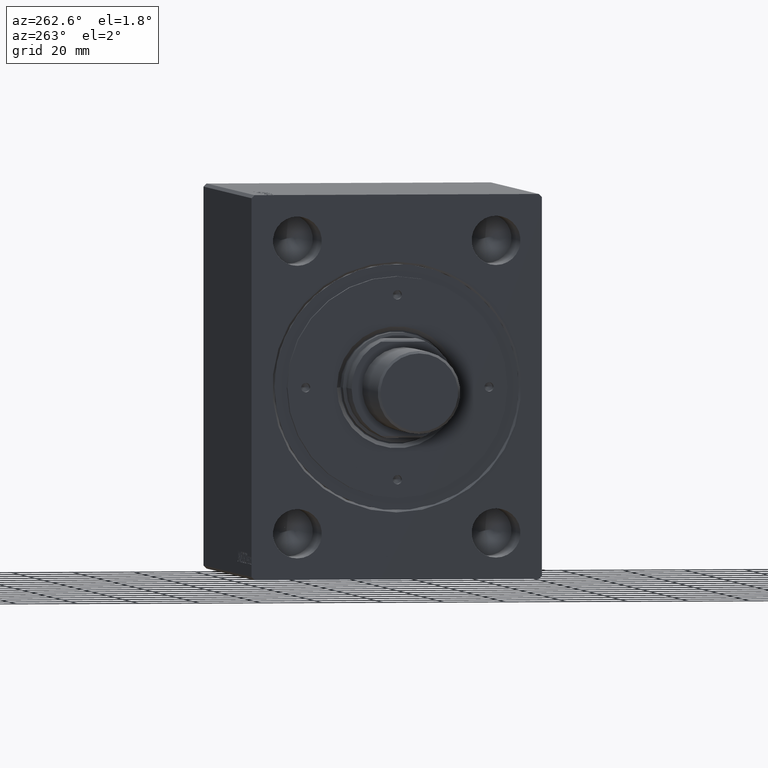
[diagram: clean part render]
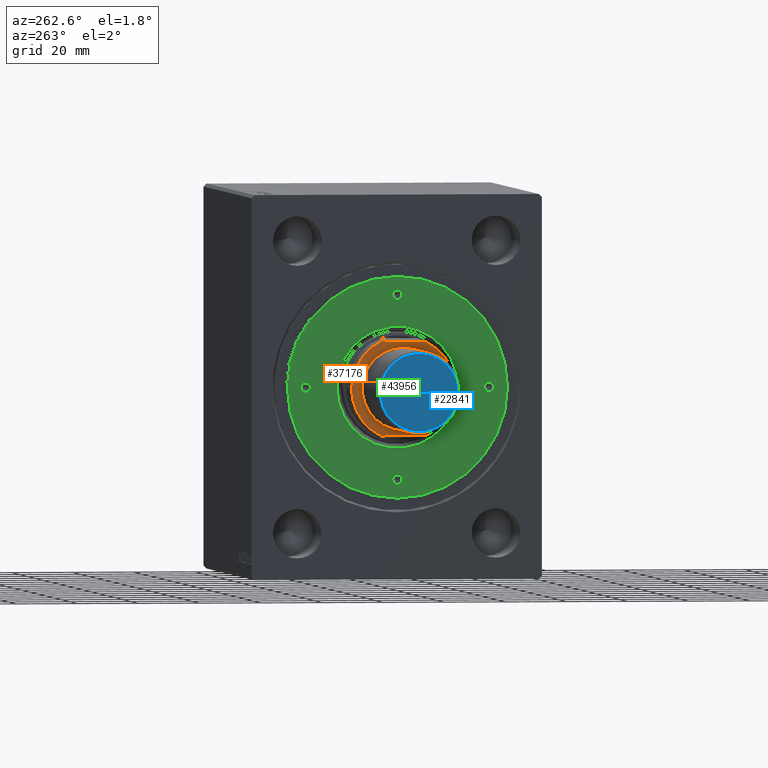
[diagram: same view with three faces highlighted in distinct colors, each labeled with its STEP entity id]
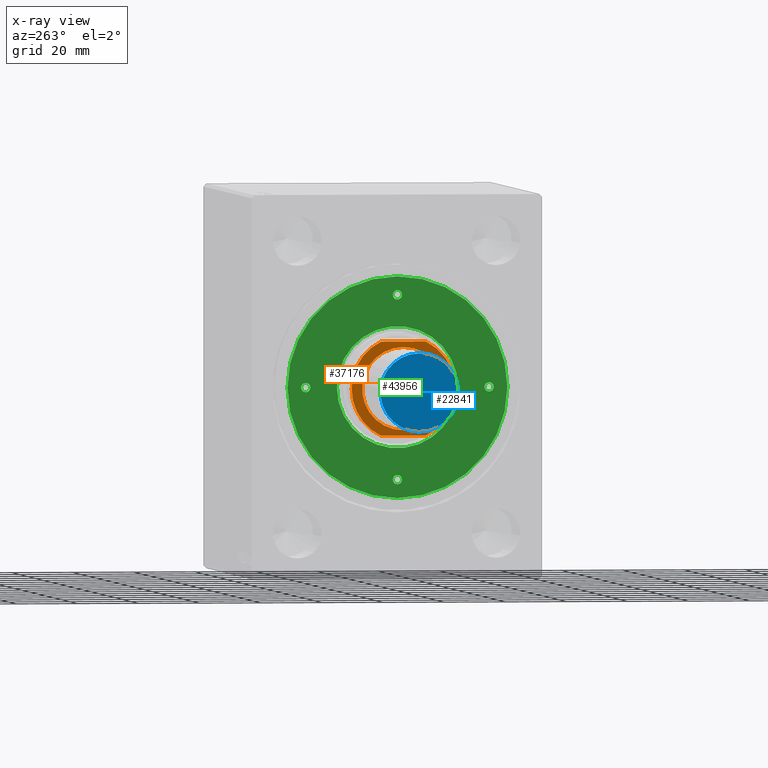
[diagram: x-ray of the same camera — body ghosted, the three highlighted faces saturated]
A machine part, auxiliary view with three faces highlighted in distinct colors.
The next image is the same camera in x-ray (body ghosted, the three faces saturated) — at least one of them is partly hidden behind the body in this view.
Their STEP definitions:

[orange] entity #37176 — the highlighted planar face has unit normal (1, -0, -0).
#474 = LINE ( 'NONE', #38440, #39097 ) ;
#3008 = DIRECTION ( 'NONE',  ( 0.000000000000000000, -1.000000000000000000, -1.376177394578395099E-16 ) ) ;
#4106 = EDGE_CURVE ( 'NONE', #25801, #37863, #24368, .T. ) ;
#5308 = DIRECTION ( 'NONE',  ( -0.000000000000000000, -1.376177394578395099E-16, 1.000000000000000000 ) ) ;
#6264 = CARTESIAN_POINT ( 'NONE',  ( 13.50000000000000000, -1.128465463554283809E-14, 81.99999999999998579 ) ) ;
#6305 = CARTESIAN_POINT ( 'NONE',  ( 0.000000000000000000, -1.128465463554283809E-14, 81.99999999999998579 ) ) ;
#6600 = CARTESIAN_POINT ( 'NONE',  ( 0.000000000000000000, -1.128465463554283809E-14, 81.99999999999998579 ) ) ;
#7842 = EDGE_CURVE ( 'NONE', #42767, #14683, #474, .T. ) ;
#7941 = VECTOR ( 'NONE', #3008, 1000.000000000000000 ) ;
#9167 = CIRCLE ( 'NONE', #17057, 13.50000000000000000 ) ;
#9247 = DIRECTION ( 'NONE',  ( 0.000000000000000000, -1.000000000000000000, 0.000000000000000000 ) ) ;
#9393 = DIRECTION ( 'NONE',  ( 1.000000000000000000, 0.000000000000000000, 0.000000000000000000 ) ) ;
#10967 = AXIS2_PLACEMENT_3D ( 'NONE', #35101, #29038, #28830 ) ;
#11130 = CARTESIAN_POINT ( 'NONE',  ( 15.28999999999999737, 7.338766926398458956, 81.99999999999998579 ) ) ;
#11866 = FACE_OUTER_BOUND ( 'NONE', #12718, .T. ) ;
#12239 = CARTESIAN_POINT ( 'NONE',  ( -15.28999999999999737, 7.338766926398458956, 81.99999999999998579 ) ) ;
#12718 = EDGE_LOOP ( 'NONE', ( #14796, #30309, #30302, #30820, #33815 ) ) ;
#13698 = DIRECTION ( 'NONE',  ( 1.000000000000000000, 0.000000000000000000, 0.000000000000000000 ) ) ;
#13913 = DIRECTION ( 'NONE',  ( 0.000000000000000000, 1.000000000000000000, 1.376177394578395099E-16 ) ) ;
#14011 = EDGE_CURVE ( 'NONE', #37863, #42767, #39254, .T. ) ;
#14683 = VERTEX_POINT ( 'NONE', #11130 ) ;
#14796 = ORIENTED_EDGE ( 'NONE', *, *, #4106, .T. ) ;
#16278 = CARTESIAN_POINT ( 'NONE',  ( 0.000000000000000000, -1.128465463554283809E-14, 81.99999999999998579 ) ) ;
#16381 = DIRECTION ( 'NONE',  ( 0.000000000000000000, 0.000000000000000000, 1.000000000000000000 ) ) ;
#17057 = AXIS2_PLACEMENT_3D ( 'NONE', #30427, #16381, #13698 ) ;
#17129 = DIRECTION ( 'NONE',  ( 0.000000000000000000, -1.000000000000000000, 0.000000000000000000 ) ) ;
#18307 = VERTEX_POINT ( 'NONE', #12239 ) ;
#18355 = PLANE ( 'NONE',  #10967 ) ;
#18959 = VERTEX_POINT ( 'NONE', #6264 ) ;
#20074 = CIRCLE ( 'NONE', #31497, 16.96000000000000085 ) ;
#20100 = AXIS2_PLACEMENT_3D ( 'NONE', #16278, #5308, #42614 ) ;
#22774 = DIRECTION ( 'NONE',  ( 0.000000000000000000, 0.000000000000000000, 1.000000000000000000 ) ) ;
#22953 = EDGE_CURVE ( 'NONE', #23421, #18959, #9167, .T. ) ;
#23089 = AXIS2_PLACEMENT_3D ( 'NONE', #39970, #22774, #9393 ) ;
#23421 = VERTEX_POINT ( 'NONE', #34826 ) ;
#24368 = CIRCLE ( 'NONE', #20100, 16.96000000000000085 ) ;
#24503 = CIRCLE ( 'NONE', #23089, 13.50000000000000000 ) ;
#25801 = VERTEX_POINT ( 'NONE', #38643 ) ;
#27516 = ORIENTED_EDGE ( 'NONE', *, *, #22953, .F. ) ;
#28830 = DIRECTION ( 'NONE',  ( 0.000000000000000000, 1.000000000000000000, 1.376177394578395099E-16 ) ) ;
#29038 = DIRECTION ( 'NONE',  ( 0.000000000000000000, 1.376177394578395099E-16, -1.000000000000000000 ) ) ;
#29344 = EDGE_CURVE ( 'NONE', #18307, #25801, #40105, .T. ) ;
#30302 = ORIENTED_EDGE ( 'NONE', *, *, #7842, .T. ) ;
#30309 = ORIENTED_EDGE ( 'NONE', *, *, #14011, .T. ) ;
#30427 = CARTESIAN_POINT ( 'NONE',  ( 0.000000000000000000, -1.128465463554283809E-14, 81.99999999999998579 ) ) ;
#30820 = ORIENTED_EDGE ( 'NONE', *, *, #31478, .T. ) ;
#31478 = EDGE_CURVE ( 'NONE', #14683, #18307, #20074, .T. ) ;
#31497 = AXIS2_PLACEMENT_3D ( 'NONE', #6600, #44125, #17129 ) ;
#32195 = FACE_BOUND ( 'NONE', #38059, .T. ) ;
#33815 = ORIENTED_EDGE ( 'NONE', *, *, #29344, .T. ) ;
#34323 = ORIENTED_EDGE ( 'NONE', *, *, #40699, .F. ) ;
#34826 = CARTESIAN_POINT ( 'NONE',  ( -13.50000000000000000, -9.631381456693912009E-15, 81.99999999999998579 ) ) ;
#35101 = CARTESIAN_POINT ( 'NONE',  ( 0.000000000000000000, 16.95999999999999019, 81.99999999999998579 ) ) ;
#36046 = DIRECTION ( 'NONE',  ( -0.000000000000000000, -1.376177394578395099E-16, 1.000000000000000000 ) ) ;
#36094 = CARTESIAN_POINT ( 'NONE',  ( -15.28999999999999737, 16.95999999999999019, 81.99999999999998579 ) ) ;
#37176 = ADVANCED_FACE ( 'NONE', ( #32195, #11866 ), #18355, .F. ) ;
#37863 = VERTEX_POINT ( 'NONE', #44047 ) ;
#38059 = EDGE_LOOP ( 'NONE', ( #34323, #27516 ) ) ;
#38440 = CARTESIAN_POINT ( 'NONE',  ( 15.28999999999999737, 16.95999999999999019, 81.99999999999998579 ) ) ;
#38643 = CARTESIAN_POINT ( 'NONE',  ( -15.28999999999999737, -7.338766926398481161, 81.99999999999998579 ) ) ;
#39086 = CARTESIAN_POINT ( 'NONE',  ( 15.28999999999999737, -7.338766926398481161, 81.99999999999998579 ) ) ;
#39097 = VECTOR ( 'NONE', #13913, 1000.000000000000000 ) ;
#39254 = CIRCLE ( 'NONE', #42809, 16.96000000000000085 ) ;
#39970 = CARTESIAN_POINT ( 'NONE',  ( 0.000000000000000000, -1.128465463554283809E-14, 81.99999999999998579 ) ) ;
#40105 = LINE ( 'NONE', #36094, #7941 ) ;
#40699 = EDGE_CURVE ( 'NONE', #18959, #23421, #24503, .T. ) ;
#42614 = DIRECTION ( 'NONE',  ( 0.000000000000000000, -1.000000000000000000, 0.000000000000000000 ) ) ;
#42767 = VERTEX_POINT ( 'NONE', #39086 ) ;
#42809 = AXIS2_PLACEMENT_3D ( 'NONE', #6305, #36046, #9247 ) ;
#44047 = CARTESIAN_POINT ( 'NONE',  ( 0.000000000000000000, -16.96000000000001151, 81.99999999999998579 ) ) ;
#44125 = DIRECTION ( 'NONE',  ( -0.000000000000000000, -1.376177394578395099E-16, 1.000000000000000000 ) ) ;

[blue] entity #22841 — the highlighted planar face has unit normal (1, -0, -0).
#985 = FACE_OUTER_BOUND ( 'NONE', #15598, .T. ) ;
#2376 = AXIS2_PLACEMENT_3D ( 'NONE', #33338, #19504, #25980 ) ;
#3365 = DIRECTION ( 'NONE',  ( -0.000000000000000000, -0.000000000000000000, -1.000000000000000000 ) ) ;
#4311 = PLANE ( 'NONE',  #7768 ) ;
#7768 = AXIS2_PLACEMENT_3D ( 'NONE', #27571, #28237, #18201 ) ;
#8395 = CARTESIAN_POINT ( 'NONE',  ( -12.69999999999998685, 1.604287306883032058E-15, -40.00000000000000000 ) ) ;
#12179 = VERTEX_POINT ( 'NONE', #41902 ) ;
#12395 = CIRCLE ( 'NONE', #2376, 12.69999999999998685 ) ;
#14355 = DIRECTION ( 'NONE',  ( 1.000000000000000000, 0.000000000000000000, 0.000000000000000000 ) ) ;
#15598 = EDGE_LOOP ( 'NONE', ( #24354, #40614 ) ) ;
#17481 = CARTESIAN_POINT ( 'NONE',  ( 0.000000000000000000, 0.000000000000000000, -40.00000000000000000 ) ) ;
#18201 = DIRECTION ( 'NONE',  ( 1.000000000000000000, 0.000000000000000000, -0.000000000000000000 ) ) ;
#19504 = DIRECTION ( 'NONE',  ( -0.000000000000000000, -0.000000000000000000, -1.000000000000000000 ) ) ;
#20997 = AXIS2_PLACEMENT_3D ( 'NONE', #17481, #3365, #14355 ) ;
#22841 = ADVANCED_FACE ( 'NONE', ( #985 ), #4311, .F. ) ;
#24354 = ORIENTED_EDGE ( 'NONE', *, *, #43467, .T. ) ;
#25980 = DIRECTION ( 'NONE',  ( 1.000000000000000000, 0.000000000000000000, 0.000000000000000000 ) ) ;
#27571 = CARTESIAN_POINT ( 'NONE',  ( 0.000000000000000000, 0.000000000000000000, -40.00000000000000000 ) ) ;
#28237 = DIRECTION ( 'NONE',  ( 0.000000000000000000, 0.000000000000000000, 1.000000000000000000 ) ) ;
#33338 = CARTESIAN_POINT ( 'NONE',  ( 0.000000000000000000, 0.000000000000000000, -40.00000000000000000 ) ) ;
#37009 = EDGE_CURVE ( 'NONE', #42961, #12179, #12395, .T. ) ;
#40614 = ORIENTED_EDGE ( 'NONE', *, *, #37009, .T. ) ;
#41679 = CIRCLE ( 'NONE', #20997, 12.69999999999998685 ) ;
#41902 = CARTESIAN_POINT ( 'NONE',  ( 12.69999999999998685, 0.000000000000000000, -40.00000000000000000 ) ) ;
#42961 = VERTEX_POINT ( 'NONE', #8395 ) ;
#43467 = EDGE_CURVE ( 'NONE', #12179, #42961, #41679, .T. ) ;

[green] entity #43956 — the highlighted planar face has unit normal (-1, 0, 0).
#166 = CIRCLE ( 'NONE', #25149, 1.499999999999996891 ) ;
#607 = DIRECTION ( 'NONE',  ( -0.000000000000000000, -0.000000000000000000, -1.000000000000000000 ) ) ;
#761 = VERTEX_POINT ( 'NONE', #14717 ) ;
#897 = DIRECTION ( 'NONE',  ( 1.000000000000000000, 0.000000000000000000, 0.000000000000000000 ) ) ;
#965 = DIRECTION ( 'NONE',  ( -0.000000000000000000, -0.000000000000000000, 1.000000000000000000 ) ) ;
#1761 = CARTESIAN_POINT ( 'NONE',  ( 0.000000000000000000, 0.000000000000000000, 11.79999999999999893 ) ) ;
#2521 = EDGE_CURVE ( 'NONE', #18853, #761, #25080, .T. ) ;
#2627 = CARTESIAN_POINT ( 'NONE',  ( -30.00000000000000000, 0.000000000000000000, 11.79999999999999893 ) ) ;
#2683 = DIRECTION ( 'NONE',  ( 1.000000000000000000, 0.000000000000000000, 0.000000000000000000 ) ) ;
#2690 = AXIS2_PLACEMENT_3D ( 'NONE', #37346, #33331, #6060 ) ;
#3433 = CIRCLE ( 'NONE', #2690, 36.00000000000000000 ) ;
#3632 = EDGE_LOOP ( 'NONE', ( #19770, #43138 ) ) ;
#4182 = CARTESIAN_POINT ( 'NONE',  ( -19.79999999999997229, 2.424800662311756249E-15, 11.79999999999999893 ) ) ;
#4307 = EDGE_LOOP ( 'NONE', ( #17288, #19453 ) ) ;
#4522 = EDGE_CURVE ( 'NONE', #38937, #31032, #37207, .T. ) ;
#4633 = FACE_BOUND ( 'NONE', #42723, .T. ) ;
#6060 = DIRECTION ( 'NONE',  ( 1.000000000000000000, 0.000000000000000000, 0.000000000000000000 ) ) ;
#6408 = ORIENTED_EDGE ( 'NONE', *, *, #4522, .F. ) ;
#7791 = EDGE_CURVE ( 'NONE', #36521, #27068, #3433, .T. ) ;
#7873 = AXIS2_PLACEMENT_3D ( 'NONE', #32898, #42711, #28666 ) ;
#8241 = DIRECTION ( 'NONE',  ( 1.000000000000000000, 0.000000000000000000, -0.000000000000000000 ) ) ;
#8481 = CARTESIAN_POINT ( 'NONE',  ( 1.499999999999996891, 30.00000000000000000, 11.79999999999999893 ) ) ;
#8872 = AXIS2_PLACEMENT_3D ( 'NONE', #25216, #38833, #8241 ) ;
#9253 = CARTESIAN_POINT ( 'NONE',  ( 0.000000000000000000, 30.00000000000000000, 11.79999999999999893 ) ) ;
#9354 = ORIENTED_EDGE ( 'NONE', *, *, #30856, .T. ) ;
#9911 = DIRECTION ( 'NONE',  ( -0.000000000000000000, -0.000000000000000000, 1.000000000000000000 ) ) ;
#10460 = DIRECTION ( 'NONE',  ( 1.000000000000000000, 0.000000000000000000, 0.000000000000000000 ) ) ;
#10973 = DIRECTION ( 'NONE',  ( -0.000000000000000000, -0.000000000000000000, -1.000000000000000000 ) ) ;
#11000 = DIRECTION ( 'NONE',  ( -0.000000000000000000, -0.000000000000000000, 1.000000000000000000 ) ) ;
#11165 = ORIENTED_EDGE ( 'NONE', *, *, #7791, .T. ) ;
#11371 = EDGE_CURVE ( 'NONE', #15547, #42952, #19274, .T. ) ;
#11555 = EDGE_CURVE ( 'NONE', #42952, #15547, #15028, .T. ) ;
#11590 = FACE_OUTER_BOUND ( 'NONE', #12016, .T. ) ;
#12016 = EDGE_LOOP ( 'NONE', ( #9354, #11165 ) ) ;
#12288 = AXIS2_PLACEMENT_3D ( 'NONE', #24743, #607, #10460 ) ;
#12872 = AXIS2_PLACEMENT_3D ( 'NONE', #17260, #11000, #20594 ) ;
#13903 = CARTESIAN_POINT ( 'NONE',  ( 36.00000000000000000, 4.408728476930470856E-15, 11.79999999999999893 ) ) ;
#14432 = CARTESIAN_POINT ( 'NONE',  ( -1.499999999999996891, 30.00000000000000000, 11.79999999999999893 ) ) ;
#14524 = FACE_BOUND ( 'NONE', #4307, .T. ) ;
#14558 = CARTESIAN_POINT ( 'NONE',  ( 0.000000000000000000, -30.00000000000000000, 11.79999999999999893 ) ) ;
#14717 = CARTESIAN_POINT ( 'NONE',  ( -28.50000000000000000, 0.000000000000000000, 11.79999999999999893 ) ) ;
#15028 = CIRCLE ( 'NONE', #12872, 1.499999999999994449 ) ;
#15117 = CIRCLE ( 'NONE', #23637, 36.00000000000000000 ) ;
#15415 = EDGE_CURVE ( 'NONE', #28442, #19400, #35774, .T. ) ;
#15547 = VERTEX_POINT ( 'NONE', #33701 ) ;
#15669 = CARTESIAN_POINT ( 'NONE',  ( 1.499999999999996891, -30.00000000000000000, 11.79999999999999893 ) ) ;
#16536 = AXIS2_PLACEMENT_3D ( 'NONE', #24845, #39344, #38682 ) ;
#17214 = AXIS2_PLACEMENT_3D ( 'NONE', #20861, #965, #21741 ) ;
#17260 = CARTESIAN_POINT ( 'NONE',  ( 30.00000000000000000, 0.000000000000000000, 11.79999999999999893 ) ) ;
#17288 = ORIENTED_EDGE ( 'NONE', *, *, #33432, .F. ) ;
#18853 = VERTEX_POINT ( 'NONE', #25524 ) ;
#19274 = CIRCLE ( 'NONE', #7873, 1.499999999999994449 ) ;
#19400 = VERTEX_POINT ( 'NONE', #26071 ) ;
#19453 = ORIENTED_EDGE ( 'NONE', *, *, #2521, .F. ) ;
#19770 = ORIENTED_EDGE ( 'NONE', *, *, #34410, .F. ) ;
#20594 = DIRECTION ( 'NONE',  ( 1.000000000000000000, 0.000000000000000000, 0.000000000000000000 ) ) ;
#20861 = CARTESIAN_POINT ( 'NONE',  ( -30.00000000000000000, 0.000000000000000000, 11.79999999999999893 ) ) ;
#20876 = CIRCLE ( 'NONE', #37249, 1.499999999999997780 ) ;
#21376 = EDGE_LOOP ( 'NONE', ( #29993, #28341 ) ) ;
#21741 = DIRECTION ( 'NONE',  ( 1.000000000000000000, 0.000000000000000000, 0.000000000000000000 ) ) ;
#21895 = DIRECTION ( 'NONE',  ( -0.000000000000000000, -0.000000000000000000, 1.000000000000000000 ) ) ;
#22667 = CARTESIAN_POINT ( 'NONE',  ( 31.49999999999999289, 0.000000000000000000, 11.79999999999999893 ) ) ;
#22926 = AXIS2_PLACEMENT_3D ( 'NONE', #1761, #10973, #24588 ) ;
#23228 = VERTEX_POINT ( 'NONE', #31546 ) ;
#23306 = DIRECTION ( 'NONE',  ( 1.000000000000000000, 0.000000000000000000, 0.000000000000000000 ) ) ;
#23637 = AXIS2_PLACEMENT_3D ( 'NONE', #39576, #43130, #2683 ) ;
#24486 = EDGE_CURVE ( 'NONE', #31032, #38937, #43425, .T. ) ;
#24588 = DIRECTION ( 'NONE',  ( 1.000000000000000000, 0.000000000000000000, 0.000000000000000000 ) ) ;
#24743 = CARTESIAN_POINT ( 'NONE',  ( 0.000000000000000000, 0.000000000000000000, 11.79999999999999893 ) ) ;
#24845 = CARTESIAN_POINT ( 'NONE',  ( 0.000000000000000000, 30.00000000000000000, 11.79999999999999893 ) ) ;
#24996 = FACE_BOUND ( 'NONE', #3632, .T. ) ;
#25080 = CIRCLE ( 'NONE', #17214, 1.499999999999997780 ) ;
#25087 = AXIS2_PLACEMENT_3D ( 'NONE', #14558, #21895, #897 ) ;
#25093 = CARTESIAN_POINT ( 'NONE',  ( -36.00000000000000000, 0.000000000000000000, 11.79999999999999893 ) ) ;
#25149 = AXIS2_PLACEMENT_3D ( 'NONE', #26666, #9911, #23306 ) ;
#25216 = CARTESIAN_POINT ( 'NONE',  ( 0.000000000000000000, 0.000000000000000000, 11.79999999999999893 ) ) ;
#25433 = PLANE ( 'NONE',  #8872 ) ;
#25524 = CARTESIAN_POINT ( 'NONE',  ( -31.50000000000000000, 1.836970198721022785E-16, 11.79999999999999893 ) ) ;
#26071 = CARTESIAN_POINT ( 'NONE',  ( 19.79999999999997229, 0.000000000000000000, 11.79999999999999893 ) ) ;
#26666 = CARTESIAN_POINT ( 'NONE',  ( 0.000000000000000000, -30.00000000000000000, 11.79999999999999893 ) ) ;
#27068 = VERTEX_POINT ( 'NONE', #25093 ) ;
#27574 = ORIENTED_EDGE ( 'NONE', *, *, #11555, .F. ) ;
#28341 = ORIENTED_EDGE ( 'NONE', *, *, #15415, .T. ) ;
#28442 = VERTEX_POINT ( 'NONE', #4182 ) ;
#28550 = FACE_BOUND ( 'NONE', #21376, .T. ) ;
#28666 = DIRECTION ( 'NONE',  ( 1.000000000000000000, 0.000000000000000000, 0.000000000000000000 ) ) ;
#29884 = DIRECTION ( 'NONE',  ( -0.000000000000000000, -0.000000000000000000, 1.000000000000000000 ) ) ;
#29993 = ORIENTED_EDGE ( 'NONE', *, *, #33591, .T. ) ;
#30856 = EDGE_CURVE ( 'NONE', #27068, #36521, #15117, .T. ) ;
#31032 = VERTEX_POINT ( 'NONE', #8481 ) ;
#31033 = EDGE_CURVE ( 'NONE', #23228, #37257, #36481, .T. ) ;
#31546 = CARTESIAN_POINT ( 'NONE',  ( -1.499999999999996891, -30.00000000000000000, 11.79999999999999893 ) ) ;
#31913 = FACE_BOUND ( 'NONE', #38732, .T. ) ;
#32898 = CARTESIAN_POINT ( 'NONE',  ( 30.00000000000000000, 0.000000000000000000, 11.79999999999999893 ) ) ;
#33331 = DIRECTION ( 'NONE',  ( 0.000000000000000000, 0.000000000000000000, 1.000000000000000000 ) ) ;
#33432 = EDGE_CURVE ( 'NONE', #761, #18853, #20876, .T. ) ;
#33591 = EDGE_CURVE ( 'NONE', #19400, #28442, #42947, .T. ) ;
#33701 = CARTESIAN_POINT ( 'NONE',  ( 28.50000000000000355, 1.836970198721022785E-16, 11.79999999999999893 ) ) ;
#34131 = DIRECTION ( 'NONE',  ( 1.000000000000000000, 0.000000000000000000, 0.000000000000000000 ) ) ;
#34410 = EDGE_CURVE ( 'NONE', #37257, #23228, #166, .T. ) ;
#35774 = CIRCLE ( 'NONE', #22926, 19.79999999999997229 ) ;
#36481 = CIRCLE ( 'NONE', #25087, 1.499999999999996891 ) ;
#36521 = VERTEX_POINT ( 'NONE', #13903 ) ;
#37207 = CIRCLE ( 'NONE', #16536, 1.499999999999996891 ) ;
#37249 = AXIS2_PLACEMENT_3D ( 'NONE', #2627, #29884, #34131 ) ;
#37257 = VERTEX_POINT ( 'NONE', #15669 ) ;
#37346 = CARTESIAN_POINT ( 'NONE',  ( 0.000000000000000000, 0.000000000000000000, 11.79999999999999893 ) ) ;
#38177 = ORIENTED_EDGE ( 'NONE', *, *, #24486, .F. ) ;
#38682 = DIRECTION ( 'NONE',  ( 1.000000000000000000, 0.000000000000000000, 0.000000000000000000 ) ) ;
#38732 = EDGE_LOOP ( 'NONE', ( #27574, #43331 ) ) ;
#38833 = DIRECTION ( 'NONE',  ( 0.000000000000000000, 0.000000000000000000, 1.000000000000000000 ) ) ;
#38937 = VERTEX_POINT ( 'NONE', #14432 ) ;
#38968 = DIRECTION ( 'NONE',  ( 1.000000000000000000, 0.000000000000000000, 0.000000000000000000 ) ) ;
#39344 = DIRECTION ( 'NONE',  ( -0.000000000000000000, -0.000000000000000000, 1.000000000000000000 ) ) ;
#39576 = CARTESIAN_POINT ( 'NONE',  ( 0.000000000000000000, 0.000000000000000000, 11.79999999999999893 ) ) ;
#39834 = DIRECTION ( 'NONE',  ( -0.000000000000000000, -0.000000000000000000, 1.000000000000000000 ) ) ;
#42711 = DIRECTION ( 'NONE',  ( -0.000000000000000000, -0.000000000000000000, 1.000000000000000000 ) ) ;
#42722 = AXIS2_PLACEMENT_3D ( 'NONE', #9253, #39834, #38968 ) ;
#42723 = EDGE_LOOP ( 'NONE', ( #38177, #6408 ) ) ;
#42947 = CIRCLE ( 'NONE', #12288, 19.79999999999997229 ) ;
#42952 = VERTEX_POINT ( 'NONE', #22667 ) ;
#43130 = DIRECTION ( 'NONE',  ( 0.000000000000000000, 0.000000000000000000, 1.000000000000000000 ) ) ;
#43138 = ORIENTED_EDGE ( 'NONE', *, *, #31033, .F. ) ;
#43331 = ORIENTED_EDGE ( 'NONE', *, *, #11371, .F. ) ;
#43425 = CIRCLE ( 'NONE', #42722, 1.499999999999996891 ) ;
#43956 = ADVANCED_FACE ( 'NONE', ( #14524, #4633, #31913, #24996, #28550, #11590 ), #25433, .T. ) ;